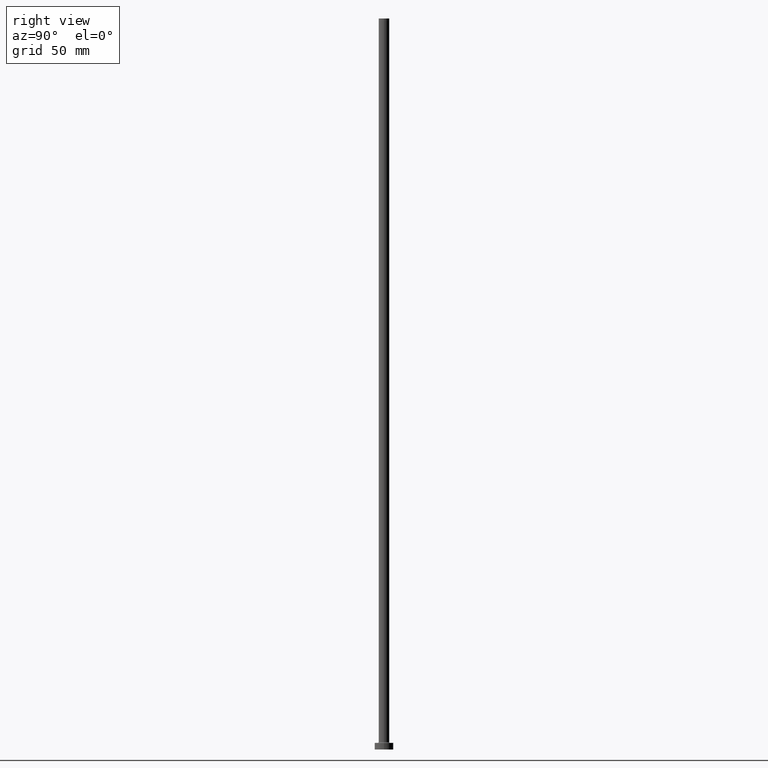
[diagram: clean part render]
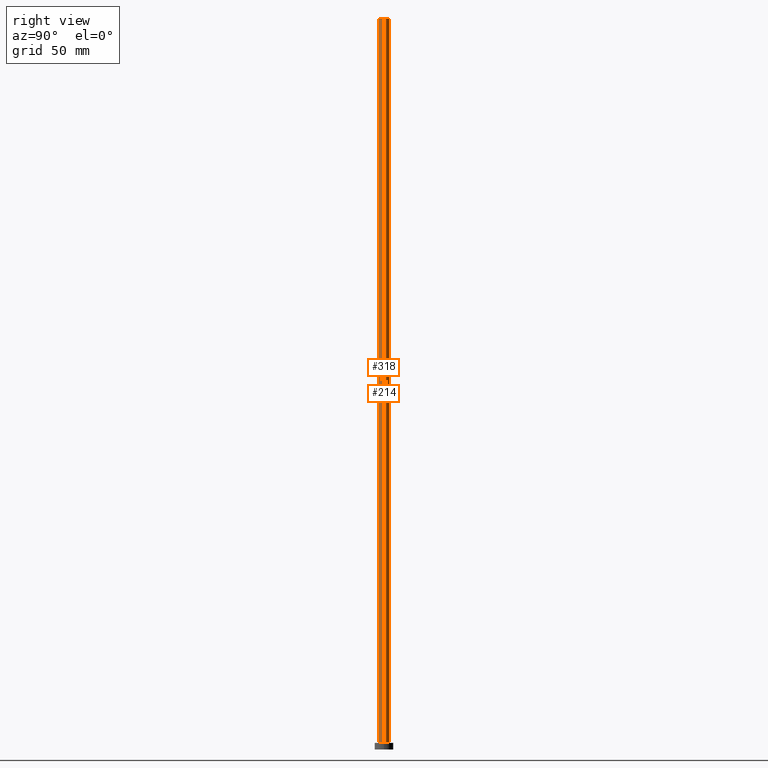
[diagram: same view with one multi-face feature highlighted, each face labeled with its STEP entity id]
A machine part, right view. The highlighted faces form ONE feature: a constant-radius fillet chain: 2 tangent blend faces with common blend radius 4 mm. The faces share edges in the B-rep.
Their STEP definitions:
[1] entity #318 (Cylinder):
#20 = VERTEX_POINT ( 'NONE', #366 ) ;
#24 = ORIENTED_EDGE ( 'NONE', *, *, #385, .T. ) ;
#34 = ORIENTED_EDGE ( 'NONE', *, *, #205, .F. ) ;
#44 = LINE ( 'NONE', #189, #181 ) ;
#50 = VECTOR ( 'NONE', #372, 1000.000000000000000 ) ;
#51 = LINE ( 'NONE', #166, #50 ) ;
#62 = VERTEX_POINT ( 'NONE', #297 ) ;
#78 = DIRECTION ( 'NONE',  ( 1.000000000000000000, 0.000000000000000000, 0.000000000000000000 ) ) ;
#87 = EDGE_CURVE ( 'NONE', #427, #62, #330, .T. ) ;
#92 = ORIENTED_EDGE ( 'NONE', *, *, #87, .F. ) ;
#97 = DIRECTION ( 'NONE',  ( -0.000000000000000000, -0.000000000000000000, -1.000000000000000000 ) ) ;
#104 = DIRECTION ( 'NONE',  ( -1.000000000000000000, 0.000000000000000000, 0.000000000000000000 ) ) ;
#160 = AXIS2_PLACEMENT_3D ( 'NONE', #201, #179, #348 ) ;
#164 = CIRCLE ( 'NONE', #160, 4.000000000000000000 ) ;
#166 = CARTESIAN_POINT ( 'NONE',  ( -4.000000000000000000, 0.000000000000000000, 550.0000000000000000 ) ) ;
#179 = DIRECTION ( 'NONE',  ( 0.000000000000000000, 0.000000000000000000, 1.000000000000000000 ) ) ;
#181 = VECTOR ( 'NONE', #335, 1000.000000000000000 ) ;
#189 = CARTESIAN_POINT ( 'NONE',  ( 4.000000000000000000, 4.898587196589412829E-16, 550.0000000000000000 ) ) ;
#196 = VERTEX_POINT ( 'NONE', #397 ) ;
#201 = CARTESIAN_POINT ( 'NONE',  ( 0.000000000000000000, 0.000000000000000000, 5.499999999999949374 ) ) ;
#205 = EDGE_CURVE ( 'NONE', #62, #20, #44, .T. ) ;
#224 = EDGE_CURVE ( 'NONE', #427, #196, #51, .T. ) ;
#240 = CARTESIAN_POINT ( 'NONE',  ( 0.000000000000000000, 0.000000000000000000, 550.0000000000000000 ) ) ;
#249 = ORIENTED_EDGE ( 'NONE', *, *, #224, .T. ) ;
#297 = CARTESIAN_POINT ( 'NONE',  ( 4.000000000000000000, 4.898587196589412829E-16, 550.0000000000000000 ) ) ;
#318 = ADVANCED_FACE ( 'NONE', ( #419 ), #354, .T. ) ;
#330 = CIRCLE ( 'NONE', #343, 4.000000000000000000 ) ;
#335 = DIRECTION ( 'NONE',  ( -0.000000000000000000, -0.000000000000000000, -1.000000000000000000 ) ) ;
#343 = AXIS2_PLACEMENT_3D ( 'NONE', #361, #432, #78 ) ;
#348 = DIRECTION ( 'NONE',  ( 1.000000000000000000, 0.000000000000000000, 0.000000000000000000 ) ) ;
#353 = EDGE_LOOP ( 'NONE', ( #34, #92, #249, #24 ) ) ;
#354 = CYLINDRICAL_SURFACE ( 'NONE', #379, 4.000000000000000000 ) ;
#361 = CARTESIAN_POINT ( 'NONE',  ( 0.000000000000000000, 0.000000000000000000, 550.0000000000000000 ) ) ;
#366 = CARTESIAN_POINT ( 'NONE',  ( 4.000000000000000000, 4.898587196589412829E-16, 5.499999999999949374 ) ) ;
#372 = DIRECTION ( 'NONE',  ( -0.000000000000000000, -0.000000000000000000, -1.000000000000000000 ) ) ;
#379 = AXIS2_PLACEMENT_3D ( 'NONE', #240, #97, #104 ) ;
#385 = EDGE_CURVE ( 'NONE', #196, #20, #164, .T. ) ;
#389 = CARTESIAN_POINT ( 'NONE',  ( -4.000000000000000000, 0.000000000000000000, 550.0000000000000000 ) ) ;
#397 = CARTESIAN_POINT ( 'NONE',  ( -4.000000000000000000, 0.000000000000000000, 5.499999999999949374 ) ) ;
#419 = FACE_OUTER_BOUND ( 'NONE', #353, .T. ) ;
#427 = VERTEX_POINT ( 'NONE', #389 ) ;
#432 = DIRECTION ( 'NONE',  ( 0.000000000000000000, 0.000000000000000000, 1.000000000000000000 ) ) ;
[2] entity #214 (Cylinder):
#20 = VERTEX_POINT ( 'NONE', #366 ) ;
#22 = AXIS2_PLACEMENT_3D ( 'NONE', #281, #246, #57 ) ;
#44 = LINE ( 'NONE', #189, #181 ) ;
#50 = VECTOR ( 'NONE', #372, 1000.000000000000000 ) ;
#51 = LINE ( 'NONE', #166, #50 ) ;
#53 = FACE_OUTER_BOUND ( 'NONE', #171, .T. ) ;
#57 = DIRECTION ( 'NONE',  ( 1.000000000000000000, 0.000000000000000000, 0.000000000000000000 ) ) ;
#62 = VERTEX_POINT ( 'NONE', #297 ) ;
#81 = CIRCLE ( 'NONE', #447, 4.000000000000000000 ) ;
#91 = CYLINDRICAL_SURFACE ( 'NONE', #245, 4.000000000000000000 ) ;
#163 = DIRECTION ( 'NONE',  ( 1.000000000000000000, 0.000000000000000000, 0.000000000000000000 ) ) ;
#166 = CARTESIAN_POINT ( 'NONE',  ( -4.000000000000000000, 0.000000000000000000, 550.0000000000000000 ) ) ;
#171 = EDGE_LOOP ( 'NONE', ( #322, #412, #455, #308 ) ) ;
#181 = VECTOR ( 'NONE', #335, 1000.000000000000000 ) ;
#189 = CARTESIAN_POINT ( 'NONE',  ( 4.000000000000000000, 4.898587196589412829E-16, 550.0000000000000000 ) ) ;
#196 = VERTEX_POINT ( 'NONE', #397 ) ;
#205 = EDGE_CURVE ( 'NONE', #62, #20, #44, .T. ) ;
#212 = EDGE_CURVE ( 'NONE', #62, #427, #81, .T. ) ;
#214 = ADVANCED_FACE ( 'NONE', ( #53 ), #91, .T. ) ;
#224 = EDGE_CURVE ( 'NONE', #427, #196, #51, .T. ) ;
#245 = AXIS2_PLACEMENT_3D ( 'NONE', #340, #369, #377 ) ;
#246 = DIRECTION ( 'NONE',  ( 0.000000000000000000, 0.000000000000000000, 1.000000000000000000 ) ) ;
#265 = CARTESIAN_POINT ( 'NONE',  ( 0.000000000000000000, 0.000000000000000000, 550.0000000000000000 ) ) ;
#281 = CARTESIAN_POINT ( 'NONE',  ( 0.000000000000000000, 0.000000000000000000, 5.499999999999949374 ) ) ;
#297 = CARTESIAN_POINT ( 'NONE',  ( 4.000000000000000000, 4.898587196589412829E-16, 550.0000000000000000 ) ) ;
#308 = ORIENTED_EDGE ( 'NONE', *, *, #224, .F. ) ;
#311 = CIRCLE ( 'NONE', #22, 4.000000000000000000 ) ;
#322 = ORIENTED_EDGE ( 'NONE', *, *, #212, .F. ) ;
#325 = EDGE_CURVE ( 'NONE', #20, #196, #311, .T. ) ;
#335 = DIRECTION ( 'NONE',  ( -0.000000000000000000, -0.000000000000000000, -1.000000000000000000 ) ) ;
#340 = CARTESIAN_POINT ( 'NONE',  ( 0.000000000000000000, 0.000000000000000000, 550.0000000000000000 ) ) ;
#346 = DIRECTION ( 'NONE',  ( 0.000000000000000000, 0.000000000000000000, 1.000000000000000000 ) ) ;
#366 = CARTESIAN_POINT ( 'NONE',  ( 4.000000000000000000, 4.898587196589412829E-16, 5.499999999999949374 ) ) ;
#369 = DIRECTION ( 'NONE',  ( -0.000000000000000000, -0.000000000000000000, -1.000000000000000000 ) ) ;
#372 = DIRECTION ( 'NONE',  ( -0.000000000000000000, -0.000000000000000000, -1.000000000000000000 ) ) ;
#377 = DIRECTION ( 'NONE',  ( -1.000000000000000000, 0.000000000000000000, 0.000000000000000000 ) ) ;
#389 = CARTESIAN_POINT ( 'NONE',  ( -4.000000000000000000, 0.000000000000000000, 550.0000000000000000 ) ) ;
#397 = CARTESIAN_POINT ( 'NONE',  ( -4.000000000000000000, 0.000000000000000000, 5.499999999999949374 ) ) ;
#412 = ORIENTED_EDGE ( 'NONE', *, *, #205, .T. ) ;
#427 = VERTEX_POINT ( 'NONE', #389 ) ;
#447 = AXIS2_PLACEMENT_3D ( 'NONE', #265, #346, #163 ) ;
#455 = ORIENTED_EDGE ( 'NONE', *, *, #325, .T. ) ;